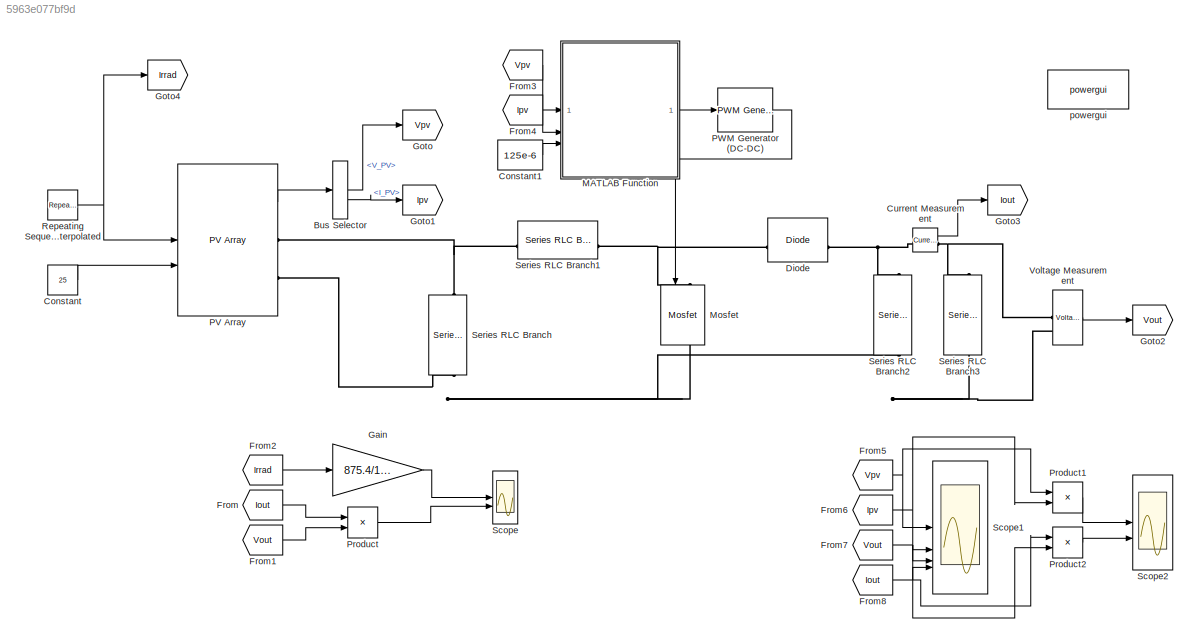
MODEL slx_5963e077bf9d
KIND model
CONFIG AbsTol = auto
CONFIG EnableMultiTasking = off
CONFIG FixedStep = auto
CONFIG MaxStep = auto
CONFIG MinStep = auto
CONFIG RelTol = 1e-3
CONFIG SampleTimeConstraint = Unconstrained
CONFIG SolverName = VariableStepAuto
CONFIG StartTime = 0.0
CONFIG StopTime = 10
BLOCK [BusSelector] Bus Selector
  OutputSignals = V_PV,I_PV
BLOCK [Constant] Constant
  Value = 25
BLOCK [Constant] Constant1
  Value = 125e-6
BLOCK [Reference] Current Measurement  REF=spsCurrentMeasurementLib/Current Measurement
  LibrarySourceBlock = sps_lib/Sensors and Measurements/Current Measurement
  SourceBlock = spsCurrentMeasurementLib/Current Measurement
  SourceType = Current Measurement
  UserDataPersistent = on
BLOCK [Reference] Diode  REF=spsDiodeLib/Diode
  LibrarySourceBlock = sps_lib/Power Electronics/Diode
  SourceBlock = spsDiodeLib/Diode
  SourceType = Diode
BLOCK [From] From
  GotoTag = Iout
BLOCK [From] From1
  GotoTag = Vout
BLOCK [From] From2
  GotoTag = Irrad
BLOCK [From] From3
  GotoTag = Vpv
BLOCK [From] From4
  GotoTag = Ipv
BLOCK [From] From5
  GotoTag = Vpv
BLOCK [From] From6
  GotoTag = Ipv
BLOCK [From] From7
  GotoTag = Vout
BLOCK [From] From8
  GotoTag = Iout
BLOCK [Gain] Gain
  Gain = 875.4/1000
BLOCK [Goto] Goto
  GotoTag = Vpv
BLOCK [Goto] Goto1
  GotoTag = Ipv
BLOCK [Goto] Goto2
  GotoTag = Vout
BLOCK [Goto] Goto3
  GotoTag = Iout
BLOCK [Goto] Goto4
  GotoTag = Irrad
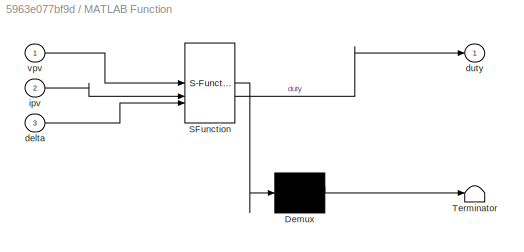
BLOCK [SubSystem] MATLAB Function
  ErrorFcn = Stateflow.Translate.translate
  PermitHierarchicalResolution = ExplicitOnly
  SFBlockType = MATLAB Function
  TreatAsAtomicUnit = on
BLOCK [Demux] MATLAB Function/ Demux 
  Outputs = 1
BLOCK [S-Function] MATLAB Function/ SFunction 
  EnableBusSupport = on
  FunctionName = sf_sfun
  PortCounts = [3 2]
  SFcnIsStateOwnerBlock = off
  SFunctionDeploymentMode = off
  Tag = Stateflow S-Function 2
BLOCK [Terminator] MATLAB Function/ Terminator 
BLOCK [Inport] MATLAB Function/delta
  Port = 3
BLOCK [Outport] MATLAB Function/duty
BLOCK [Inport] MATLAB Function/ipv
  Port = 2
BLOCK [Inport] MATLAB Function/vpv
BLOCK [Reference] Mosfet  REF=spsMosfetLib/Mosfet
  LibrarySourceBlock = sps_lib/Power Electronics/Mosfet
  NameLocation = left
  SourceBlock = spsMosfetLib/Mosfet
  SourceType = Mosfet
BLOCK [Reference] PV Array  REF=spsPVArrayLib/PV Array
  LibrarySourceBlock = sps_lib/Sources/PV Array
  SourceBlock = spsPVArrayLib/PV Array
  SourceType = PV array
BLOCK [Reference] PWM Generator (DC-DC)  REF=spsPWMGeneratorDCDCLib/PWM Generator
(DC-DC)
  LibrarySourceBlock = sps_lib/Power Electronics/Power Electronics Control/PWM Generator\n(DC-DC)
  SourceBlock = spsPWMGeneratorDCDCLib/PWM Generator\n(DC-DC)
  SourceType = PWM Generator (DC-DC)
BLOCK [Product] Product
BLOCK [Product] Product1
BLOCK [Product] Product2
BLOCK [Reference] Repeating Sequence Interpolated  REF=simulink/Sources/Repeating
Sequence
Interpolated
  SourceBlock = simulink/Sources/Repeating\nSequence\nInterpolated
  SourceType = Repeating Sequence Interpolated
BLOCK [Scope] Scope
  Floating = off
  NumInputPorts = 2
  ScopeSpecificationString = Simulink.scopes.TimeScopeBlockCfg('CurrentConfiguration', extmgr.ConfigurationSet(extmgr.Configuration('Core','General UI',true,'FigureColor',[1 1 1]),extmgr.Configuration('Core','Source UI',true),extmgr.Configuration('Sources','WiredSimulink',true),extmgr.Configuration('Visuals','Time Domain',true,'SerializedDisplays',{struct('MinYLimReal','-109.425','MaxYLimReal','984.825','YLabelReal','','MinYL...<+3861ch>
BLOCK [Scope] Scope1
  Floating = off
  NumInputPorts = 4
  ScopeSpecificationString = Simulink.scopes.TimeScopeBlockCfg('CurrentConfiguration', extmgr.ConfigurationSet(extmgr.Configuration('Core','General UI',true,'FigureColor',[1 1 1]),extmgr.Configuration('Core','Source UI',true),extmgr.Configuration('Sources','WiredSimulink',true,'DataLoggingVariableName','ScopeData1'),extmgr.Configuration('Visuals','Time Domain',true,'SerializedDisplays',{struct('MinYLimReal','-8.53916','MaxYLi...<+5360ch>
BLOCK [Scope] Scope2
  Floating = off
  NumInputPorts = 2
  ScopeSpecificationString = Simulink.scopes.TimeScopeBlockCfg('CurrentConfiguration', extmgr.ConfigurationSet(extmgr.Configuration('Core','General UI',true,'FigureColor',[1 1 1]),extmgr.Configuration('Core','Source UI',true),extmgr.Configuration('Sources','WiredSimulink',true,'DataLoggingVariableName','ScopeData2'),extmgr.Configuration('Visuals','Time Domain',true,'SerializedDisplays',{struct('MinYLimReal','-185.47628','MaxY...<+3899ch>
BLOCK [Reference] Series RLC Branch  REF=spsSeriesRLCBranchLib/Series RLC Branch
  LibrarySourceBlock = sps_lib/Passives/Series RLC Branch
  NameLocation = left
  SourceBlock = spsSeriesRLCBranchLib/Series RLC Branch
  SourceType = Series RLC Branch
BLOCK [Reference] Series RLC Branch1  REF=spsSeriesRLCBranchLib/Series RLC Branch
  LibrarySourceBlock = sps_lib/Passives/Series RLC Branch
  NameLocation = top
  SourceBlock = spsSeriesRLCBranchLib/Series RLC Branch
  SourceType = Series RLC Branch
BLOCK [Reference] Series RLC Branch2  REF=spsSeriesRLCBranchLib/Series RLC Branch
  LibrarySourceBlock = sps_lib/Passives/Series RLC Branch
  NameLocation = left
  SourceBlock = spsSeriesRLCBranchLib/Series RLC Branch
  SourceType = Series RLC Branch
BLOCK [Reference] Series RLC Branch3  REF=spsSeriesRLCBranchLib/Series RLC Branch
  LibrarySourceBlock = sps_lib/Passives/Series RLC Branch
  NameLocation = left
  SourceBlock = spsSeriesRLCBranchLib/Series RLC Branch
  SourceType = Series RLC Branch
BLOCK [Reference] Voltage Measurement  REF=spsVoltageMeasurementLib/Voltage Measurement
  LibrarySourceBlock = sps_lib/Sensors and Measurements/Voltage Measurement
  SourceBlock = spsVoltageMeasurementLib/Voltage Measurement
  SourceType = Voltage Measurement
  UserDataPersistent = on
BLOCK [Reference] powergui  REF=sps_lib/powergui
  LibrarySourceBlock = sps_lib/powergui
  Priority = 1
  SourceBlock = sps_lib/powergui
  SourceType = PSB option menu block
LINE Bus Selector:1 -> Goto:1
LINE Bus Selector:2 -> Goto1:1
LINE Constant1:1 -> MATLAB Function:3
LINE Constant:1 -> PV Array:2
LINE Current Measurement:1 -> Goto3:1
LINE From1:1 -> Product:2
LINE From2:1 -> Gain:1
LINE From3:1 -> MATLAB Function:1
LINE From4:1 -> MATLAB Function:2
NET From5:1 -> Product1:1, Scope1:1
NET From6:1 -> Product1:2, Scope1:2
NET From7:1 -> Product2:2, Scope1:3
NET From8:1 -> Product2:1, Scope1:4
LINE From:1 -> Product:1
LINE Gain:1 -> Scope:1
LINE MATLAB Function:1 -> PWM Generator (DC-DC):1
LINE PV Array:1 -> Bus Selector:1
LINE PWM Generator (DC-DC):1 -> Mosfet:1
LINE Product1:1 -> Scope2:1
LINE Product2:1 -> Scope2:2
LINE Product:1 -> Scope:2
NET Repeating Sequence Interpolated:1 -> Goto4:1, PV Array:1
LINE Voltage Measurement:1 -> Goto2:1
PNET net1: Current Measurement:LConn1 -- Diode:RConn1 -- Series RLC Branch2:LConn1
PNET net2: Current Measurement:RConn1 -- Series RLC Branch3:LConn1 -- Voltage Measurement:LConn1
PNET net3: Diode:LConn1 -- Mosfet:LConn1 -- Series RLC Branch1:LConn1
PNET net4: Mosfet:RConn1 -- PV Array:RConn2 -- Series RLC Branch2:RConn1 -- Series RLC Branch3:RConn1 -- Series RLC Branch:RConn1 -- Voltage Measurement:LConn2
PNET net5: PV Array:RConn1 -- Series RLC Branch1:RConn1 -- Series RLC Branch:LConn1
note: NET lines group one-source signal fan-out (src -> all destinations, sorted); 1:1 wires keep LINE; PNET lines group multi-terminal physical nets as a canonical sorted terminal list (undirected conserving connections); 2-terminal nets keep the pairwise PLINE form
CHART MATLAB Function states=1 transitions=1
  STATE_LABEL 'eML_blk_kernel()'
  STATE_LABEL 'SCRIPT:\nfunction duty = MPPT_algorithm(vpv,ipv,delta)\nduty_init = 0.1;\nduty_min = 0;\nduty_max = 0.85;\n\npersistent Vold Pold duty_old; %Persistent variable type can store the data\nif isempty(Vold)\n    Vold = 0;\n    Pold = 0;\n    duty_old = duty_init;\nend\nP = vpv*ipv;\ndV = vpv - Vold;\ndP = P - Pold;\n\n% the below algorithm search for dP/dV = 0\n% if it is 0 duty will not change\n% if old and new power ...<+516ch>'
CHART  states=0 transitions=0
